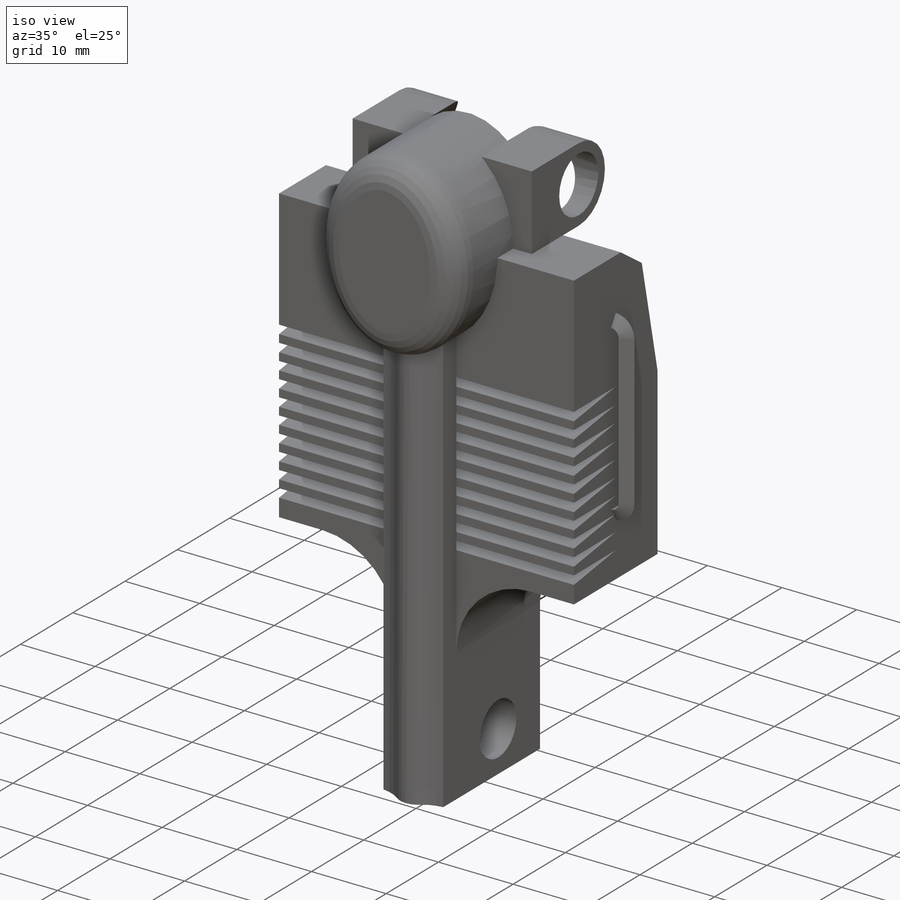
[diagram: iso view]
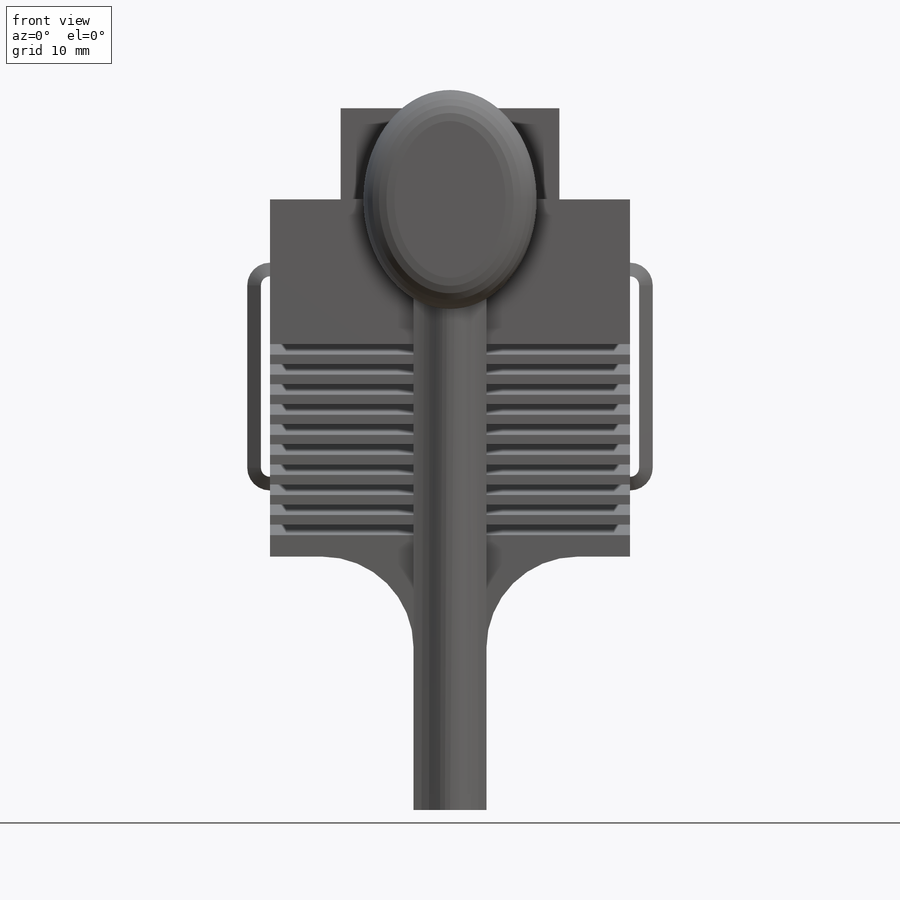
[diagram: front view]
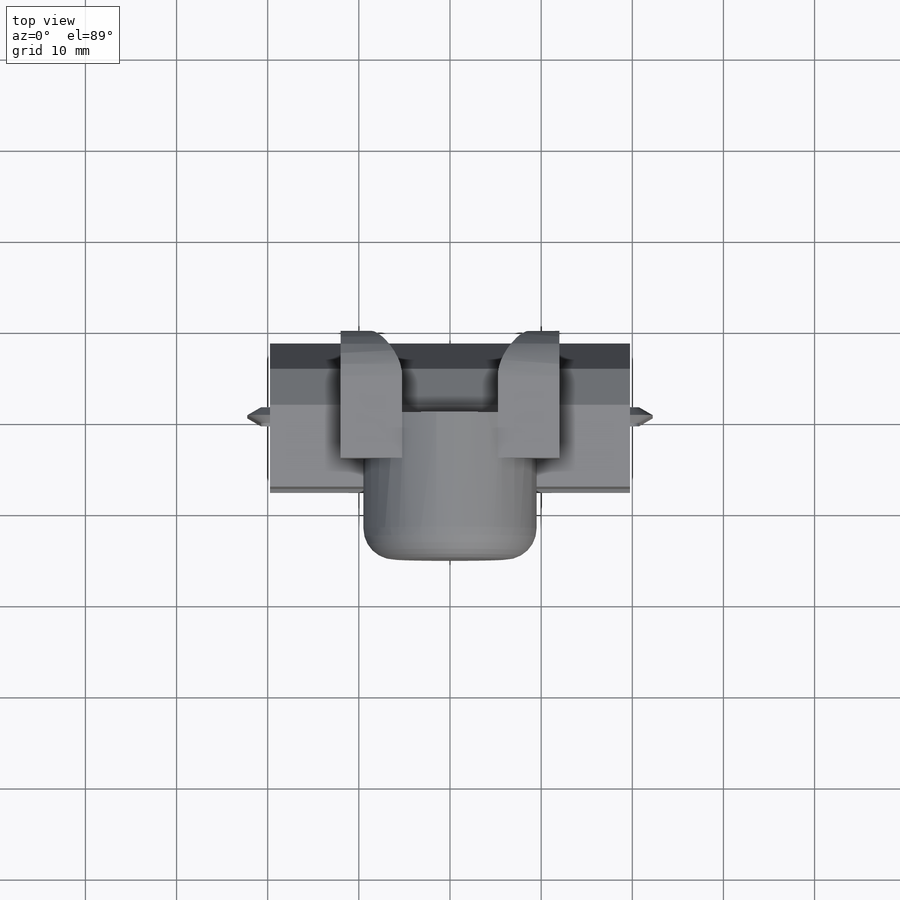
[diagram: top view]
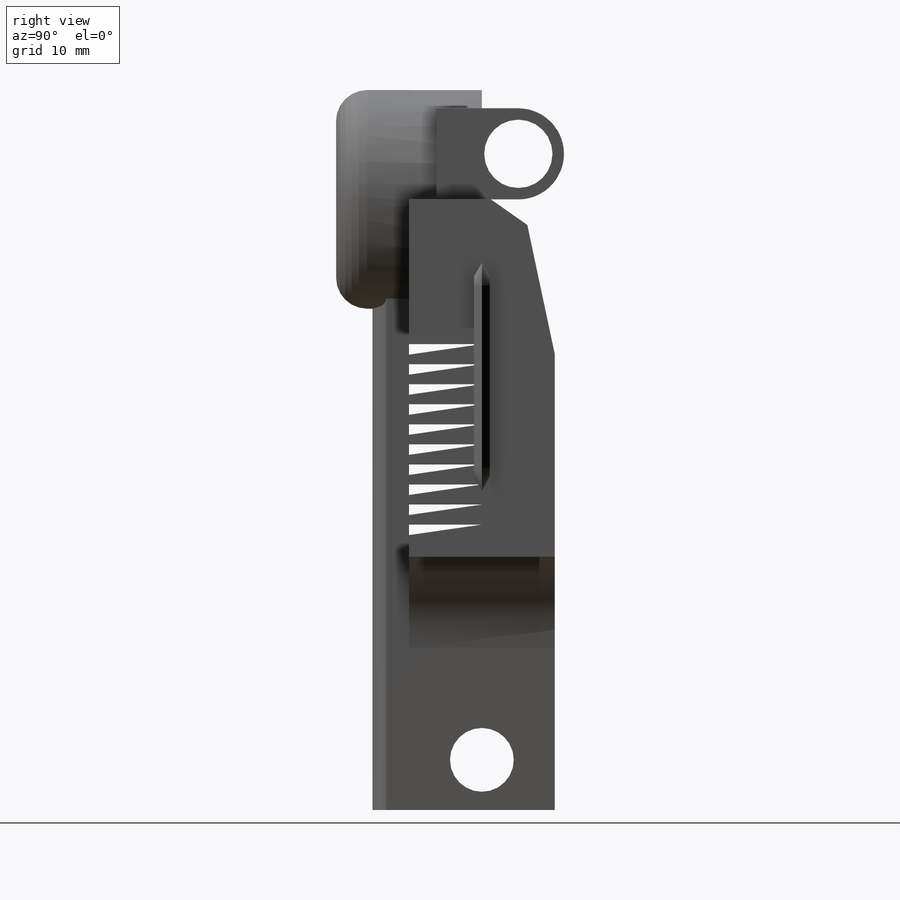
[diagram: right view]
SOLIDWORKS PART (.sldprt)
format: sldprt  version: not decoded by parser v0  size: 635,392 bytes
history: native  units: mm
features: sketch x10, extrude x4, cut_extrude x4, plane x2, mirror x2, material x1, chamfer x1, pattern_linear x1, fillet x1, sweep x1 (+13 scaffold rows collapsed)
feature tree (40):
  scaffold x13  (default folders/planes/origin — collapsed)
  material  "Material <not specified>"
  sketch  "Sketch2"  dims[D5=10.0mm D1=8.0mm D2=39.2mm D3=39.5mm D4=27.8mm]
  extrude  "Boss-Extrude1"  Depth=16mm
  sketch  "Sketch3"  dims[D1=7.0mm D2=5.5mm]
  cut_extrude  "Cut-Extrude1"  [1 undecoded]
  plane  "Plane3"  Offset=8mm
  sketch  "Sketch6"  dims[c1.D1=16.0mm c1.D2=24.0mm c2.D1=19.0mm]
  extrude  "Boss-Extrude5"  [1 undecoded]
  plane  "Plane2"  Offset=12mm
  sketch  "Sketch7"  dims[D1=10.0mm D2=5.0mm D3=9.0mm]
  extrude  "Boss-Extrude8"  [1 undecoded]
  sketch  "Sketch8"  dims[D1=7.5mm]
  cut_extrude  "Cut-Extrude2"  [1 undecoded]
  mirror  "Mirror1"
  chamfer  "Chamfer1"  Distance=17mm Angle=12deg
  sketch  "Sketch9"  dims[c1.D2=4.5mm c1.D3=2.5mm c1.D4=2.5mm c1.D1=2.5mm c2.D4=1.5mm]
  extrude  "Boss-Extrude9"  [1 undecoded]
  sketch  "Sketch10"  dims[D1=5.0mm D2=1.15mm D3=8.0mm]
  cut_extrude  "Cut-Extrude3"  [1 undecoded]
  pattern_linear  "LPattern1"  Count1=10 Count2=1 Spacing1=2.2mm Spacing2=10mm
  fillet  "Fillet1"  Radius=3.4mm
  sketch  "Sketch11"  dims[D1=1.5mm D2=20.0mm]
  sketch  "Sketch12"  dims[D1=1.0mm]
  sweep  "Sweep1"
  mirror  "Mirror4"
  sketch  "Sketch13"  dims[c1.D1=~3.298862mm c2.D1=35.0deg c2.D2=2.8mm]
  cut_extrude  "Cut-Extrude4"  [1 undecoded]
decode coverage: 14 of 24 modeling features carry decoded parameters
note: ~ marks probable driven/reference dimensions
note: 7 parameter values undecoded
summary: no parameter record found for 7 features
note: suppression state not decoded; provenance and decode notes live in map.json
